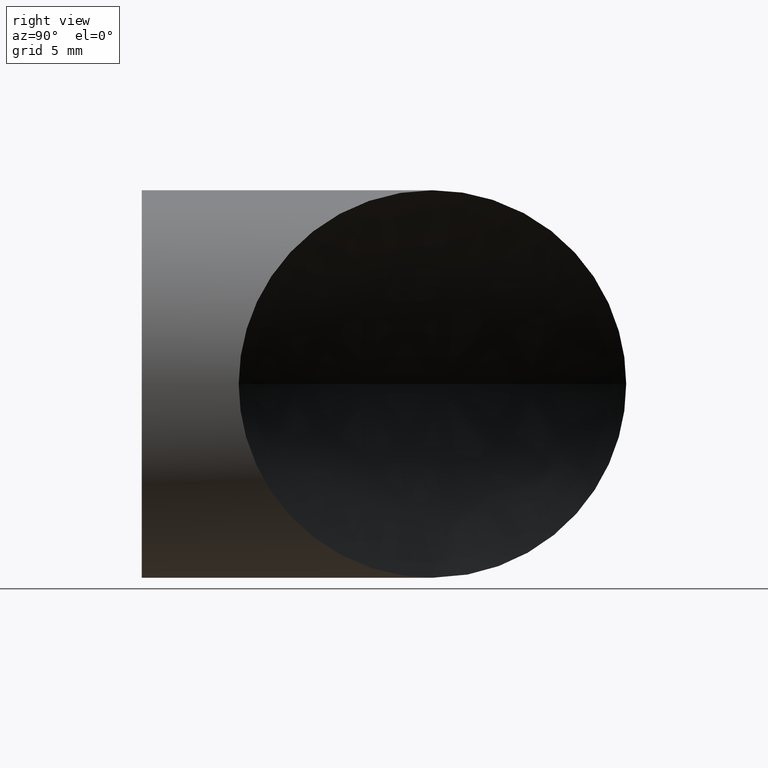
[diagram: clean part render]
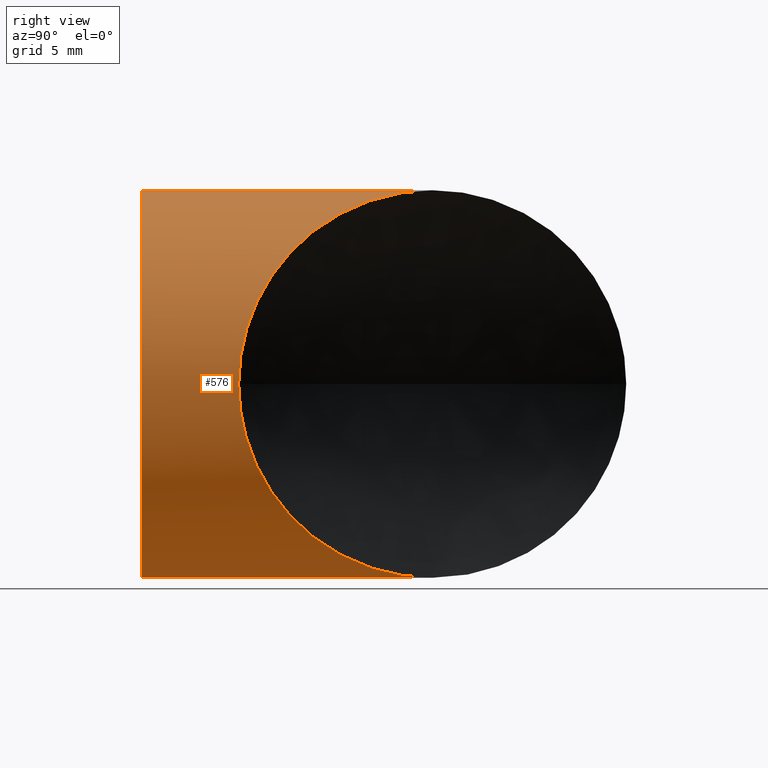
[diagram: same view with one face highlighted and labeled with its STEP entity id]
A machine part, right view. The second image highlights one B-rep face of the part: STEP entity #576.
In plain terms, the highlighted cylindrical surface (partial cylindrical patch) has radius 12.7 mm, axis along (-0, -1, -0).
Its self-contained STEP definition (entity closure, byte-faithful):
#14 = CARTESIAN_POINT ( 'NONE',  ( 11.46083045844308046, 7.589169541525321527, -5.476537139817066802 ) ) ;
#20 = VERTEX_POINT ( 'NONE', #255 ) ;
#22 = CARTESIAN_POINT ( 'NONE',  ( 6.601847638495660142, 12.44815236147140070, -10.85593859369190817 ) ) ;
#30 = ORIENTED_EDGE ( 'NONE', *, *, #791, .F. ) ;
#32 = CARTESIAN_POINT ( 'NONE',  ( 1.429385367669002260, 17.62061463229626312, 12.62441483667357112 ) ) ;
#37 = VERTEX_POINT ( 'NONE', #196 ) ;
#45 = VECTOR ( 'NONE', #581, 1000.000000000000000 ) ;
#52 = AXIS2_PLACEMENT_3D ( 'NONE', #345, #405, #173 ) ;
#63 = CARTESIAN_POINT ( 'NONE',  ( 1.787247943871000055, 17.26275205609421448, 12.57874327586289098 ) ) ;
#73 = CARTESIAN_POINT ( 'NONE',  ( 11.83646679624296816, 7.213533203726102627, -4.609351959705408674 ) ) ;
#75 = CARTESIAN_POINT ( 'NONE',  ( 5.605679513964143545, 13.44432048600252472, -11.42145074648603398 ) ) ;
#80 = CARTESIAN_POINT ( 'NONE',  ( 8.802940517943984133, 10.24705948202286088, -9.188963411443394236 ) ) ;
#97 = CARTESIAN_POINT ( 'NONE',  ( 10.44377629980238353, 8.606223700165564594, 7.239865530170297880 ) ) ;
#114 = CARTESIAN_POINT ( 'NONE',  ( 12.67001750688577744, 6.379982493083709905, 1.009839841562243823 ) ) ;
#125 = CARTESIAN_POINT ( 'NONE',  ( 4.919003763048981348, 14.13099623691744888, 11.73128122438705567 ) ) ;
#130 = CARTESIAN_POINT ( 'NONE',  ( 2.849473519728098037, 16.20052648023753861, 12.39704203074799871 ) ) ;
#134 = CARTESIAN_POINT ( 'NONE',  ( 11.15152537328789606, 7.898474626680381583, -6.094740126766177823 ) ) ;
#142 = CARTESIAN_POINT ( 'NONE',  ( 2.855152482995872543, 16.19484751696936442, -12.39579623565930788 ) ) ;
#160 = CARTESIAN_POINT ( 'NONE',  ( 7.561611379893681928, 11.48838862007336914, 10.21109426996262926 ) ) ;
#163 = CARTESIAN_POINT ( 'NONE',  ( 11.75198745430705749, 7.298012545661985762, 4.838766919932773192 ) ) ;
#166 = CARTESIAN_POINT ( 'NONE',  ( 10.92500611823181345, 8.124993881736317647, 6.490944277365154669 ) ) ;
#173 = DIRECTION ( 'NONE',  ( 0.0000000000000000000, 0.0000000000000000000, -1.000000000000000000 ) ) ;
#184 = LINE ( 'NONE', #280, #45 ) ;
#196 = CARTESIAN_POINT ( 'NONE',  ( -3.132693757179637918E-12, 19.04999999996803695, 12.70000000000026041 ) ) ;
#197 = CARTESIAN_POINT ( 'NONE',  ( 6.931521098869869668, 12.11847890109790526, -10.64879662899022605 ) ) ;
#207 = EDGE_CURVE ( 'NONE', #37, #20, #363, .T. ) ;
#218 = CARTESIAN_POINT ( 'NONE',  ( 1.555301434917138433E-15, 200.0000000000000000, 12.69999999999999929 ) ) ;
#220 = CARTESIAN_POINT ( 'NONE',  ( 12.22725598296658234, 6.822744017001713956, 3.467880644624239395 ) ) ;
#240 = EDGE_LOOP ( 'NONE', ( #30, #495, #480, #628, #241 ) ) ;
#241 = ORIENTED_EDGE ( 'NONE', *, *, #425, .F. ) ;
#248 = CARTESIAN_POINT ( 'NONE',  ( 12.54206478576839601, 6.507935214200748497, -2.012280748583813228 ) ) ;
#249 = CARTESIAN_POINT ( 'NONE',  ( 11.74712600856367928, 7.302873991405227194, -4.832260201967334190 ) ) ;
#255 = CARTESIAN_POINT ( 'NONE',  ( 1.555301434917138433E-15, 0.0000000000000000000, 12.69999999999999929 ) ) ;
#258 = AXIS2_PLACEMENT_3D ( 'NONE', #782, #411, #731 ) ;
#267 = CARTESIAN_POINT ( 'NONE',  ( -3.132693757179637918E-12, 19.04999999996803695, 12.70000000000026041 ) ) ;
#274 = CARTESIAN_POINT ( 'NONE',  ( 8.796537155208987713, 10.25346284472990455, 9.195328755256735320 ) ) ;
#280 = CARTESIAN_POINT ( 'NONE',  ( 0.0000000000000000000, 200.0000000000000000, -12.69999999999999929 ) ) ;
#289 = CARTESIAN_POINT ( 'NONE',  ( 12.70000000000023377, 6.349999999969435649, 0.0000000000000000000 ) ) ;
#307 = CARTESIAN_POINT ( 'NONE',  ( 7.886829916384055394, 11.16317008358242191, -9.962309795164632220 ) ) ;
#308 = EDGE_CURVE ( 'NONE', #20, #370, #730, .T. ) ;
#316 = CARTESIAN_POINT ( 'NONE',  ( 12.40164334135289437, 6.648356658616227044, -2.747705071860363724 ) ) ;
#317 = CARTESIAN_POINT ( 'NONE',  ( 11.55946391817771257, 7.490536081791117518, -5.265406161440742139 ) ) ;
#338 = DIRECTION ( 'NONE',  ( -0.0000000000000000000, -1.000000000000000000, -0.0000000000000000000 ) ) ;
#340 = CARTESIAN_POINT ( 'NONE',  ( 6.915862950740484294, 12.13413704922630565, 10.65904557158737376 ) ) ;
#345 = CARTESIAN_POINT ( 'NONE',  ( 0.0000000000000000000, 200.0000000000000000, 0.0000000000000000000 ) ) ;
#363 = LINE ( 'NONE', #218, #649 ) ;
#370 = VERTEX_POINT ( 'NONE', #665 ) ;
#371 = B_SPLINE_CURVE_WITH_KNOTS ( 'NONE', 3,
 ( #442, #700, #498, #696, #248, #753, #316, #493, #431, #73, #249, #317, #14, #134, #756, #558, #631, #373, #80, #307, #561, #197, #22, #75, #502, #499, #142, #507, #752, #564 ),
 .UNSPECIFIED., .F., .F.,
 ( 4, 2, 2, 2, 2, 2, 2, 2, 2, 2, 2, 2, 2, 2, 4 ),
 ( 0.07208609573369624546, 0.07358591069448940092, 0.07433581817488596477, 0.07508572565528254250, 0.07658554061607569796, 0.07733544809647227569, 0.07808535557686885342, 0.07958517053766199500, 0.08108498549845515047, 0.08408461542004144751, 0.08558443038083460297, 0.08708424534162775843, 0.09008387526321405547, 0.09308350518480036639, 0.09608313510638666344 ),
 .UNSPECIFIED. ) ;
#373 = CARTESIAN_POINT ( 'NONE',  ( 9.381974331476964579, 9.668025668491086577, -8.603140347862060722 ) ) ;
#386 = CARTESIAN_POINT ( 'NONE',  ( 0.7136360518662263619, 18.33636394809876435, 12.68501935683216963 ) ) ;
#395 = CARTESIAN_POINT ( 'NONE',  ( 7.876614981177863406, 11.17338501876066204, 9.970442349681841065 ) ) ;
#401 = CARTESIAN_POINT ( 'NONE',  ( 10.18558286620709019, 8.864417133761675061, 7.598030722870877440 ) ) ;
#405 = DIRECTION ( 'NONE',  ( -0.0000000000000000000, -1.000000000000000000, -0.0000000000000000000 ) ) ;
#411 = DIRECTION ( 'NONE',  ( 0.0000000000000000000, 1.000000000000000000, 0.0000000000000000000 ) ) ;
#420 = FACE_OUTER_BOUND ( 'NONE', #240, .T. ) ;
#425 = EDGE_CURVE ( 'NONE', #767, #630, #371, .T. ) ;
#431 = CARTESIAN_POINT ( 'NONE',  ( 12.08597738952259526, 6.964022610446568784, -3.930831638203395428 ) ) ;
#442 = CARTESIAN_POINT ( 'NONE',  ( 12.70000000000023377, 6.349999999969435649, 0.0000000000000000000 ) ) ;
#451 = B_SPLINE_CURVE_WITH_KNOTS ( 'NONE', 3,
 ( #267, #717, #386, #32, #63, #130, #483, #125, #546, #719, #340, #160, #395, #274, #460, #401, #97, #166, #521, #590, #163, #586, #220, #656, #477, #114, #539, #289 ),
 .UNSPECIFIED., .F., .F.,
 ( 4, 2, 2, 2, 2, 2, 2, 2, 2, 2, 2, 2, 2, 4 ),
 ( 0.04806234198104189503, 0.04956382659058279627, 0.05106531120012370445, 0.05406828041920549999, 0.05707124963828729552, 0.05857273424782819676, 0.06007421885736909106, 0.06307718807645087966, 0.06457867268599176702, 0.06608015729553266826, 0.06758164190507356950, 0.06908312651461445686, 0.07058461112415535810, 0.07208609573369624546 ),
 .UNSPECIFIED. ) ;
#460 = CARTESIAN_POINT ( 'NONE',  ( 9.376833469306342650, 9.673166530662104634, 8.608697395603924107 ) ) ;
#477 = CARTESIAN_POINT ( 'NONE',  ( 12.54855033674582465, 6.501449663223616504, 2.020644594320044618 ) ) ;
#480 = ORIENTED_EDGE ( 'NONE', *, *, #308, .T. ) ;
#483 = CARTESIAN_POINT ( 'NONE',  ( 3.546809371701622471, 15.50319062826426730, 12.21637018378846662 ) ) ;
#493 = CARTESIAN_POINT ( 'NONE',  ( 12.22788635843573424, 6.822113641533317896, -3.465740630426696445 ) ) ;
#495 = ORIENTED_EDGE ( 'NONE', *, *, #207, .T. ) ;
#498 = CARTESIAN_POINT ( 'NONE',  ( 12.67011755549540730, 6.379882444473539138, -1.007176147025225177 ) ) ;
#499 = CARTESIAN_POINT ( 'NONE',  ( 3.553757434003594895, 15.49624256596235838, -12.21445827631310088 ) ) ;
#502 = CARTESIAN_POINT ( 'NONE',  ( 4.929004921351947566, 14.12099507861455727, -11.72719460778312595 ) ) ;
#507 = CARTESIAN_POINT ( 'NONE',  ( 1.436873122830487182, 17.61312687713418512, -12.63894994238170355 ) ) ;
#521 = CARTESIAN_POINT ( 'NONE',  ( 11.14949063026067044, 7.900509369707457097, 6.098495463351418344 ) ) ;
#523 = CYLINDRICAL_SURFACE ( 'NONE', #52, 12.69999999999999929 ) ;
#539 = CARTESIAN_POINT ( 'NONE',  ( 12.70000000000023910, 6.349999999969438313, 0.5044576789329778821 ) ) ;
#546 = CARTESIAN_POINT ( 'NONE',  ( 5.593893530319160590, 13.45610646964802903, 11.42703603216384423 ) ) ;
#558 = CARTESIAN_POINT ( 'NONE',  ( 10.44753238245630733, 8.602467617512145281, -7.234391973878477877 ) ) ;
#561 = CARTESIAN_POINT ( 'NONE',  ( 7.573415272199055970, 11.47658472776896943, -10.20226619455177186 ) ) ;
#564 = CARTESIAN_POINT ( 'NONE',  ( -2.012279232133096230E-13, 19.04999999996460858, -12.70000000000005080 ) ) ;
#573 = EDGE_CURVE ( 'NONE', #630, #370, #184, .T. ) ;
#576 = ADVANCED_FACE ( 'NONE', ( #420 ), #523, .T. ) ;
#580 = CARTESIAN_POINT ( 'NONE',  ( 12.70000000000023377, 6.349999999969435649, 0.0000000000000000000 ) ) ;
#581 = DIRECTION ( 'NONE',  ( -0.0000000000000000000, -1.000000000000000000, -0.0000000000000000000 ) ) ;
#586 = CARTESIAN_POINT ( 'NONE',  ( 12.08529452624409650, 6.964705473725070206, 3.933005294372300842 ) ) ;
#590 = CARTESIAN_POINT ( 'NONE',  ( 11.56254631237557540, 7.487453687592712903, 5.273548236714847626 ) ) ;
#628 = ORIENTED_EDGE ( 'NONE', *, *, #573, .F. ) ;
#630 = VERTEX_POINT ( 'NONE', #653 ) ;
#631 = CARTESIAN_POINT ( 'NONE',  ( 10.19051452320394091, 8.859485476764421108, -7.591428080588281446 ) ) ;
#649 = VECTOR ( 'NONE', #338, 1000.000000000000000 ) ;
#653 = CARTESIAN_POINT ( 'NONE',  ( -2.012279232133096230E-13, 19.04999999996460858, -12.70000000000005080 ) ) ;
#656 = CARTESIAN_POINT ( 'NONE',  ( 12.45886779579681480, 6.591132204171577413, 2.511692314995735753 ) ) ;
#665 = CARTESIAN_POINT ( 'NONE',  ( 0.0000000000000000000, 0.0000000000000000000, -12.69999999999999929 ) ) ;
#696 = CARTESIAN_POINT ( 'NONE',  ( 12.57984097757541520, 6.470159022393493053, -1.761156337241038150 ) ) ;
#700 = CARTESIAN_POINT ( 'NONE',  ( 12.70000000000023199, 6.349999999969437425, -0.5038967227123343218 ) ) ;
#717 = CARTESIAN_POINT ( 'NONE',  ( 0.3564710798094332111, 18.69352892015474765, 12.70000000000110241 ) ) ;
#719 = CARTESIAN_POINT ( 'NONE',  ( 6.587015225188835643, 12.46298477477874123, 10.86489437364019572 ) ) ;
#730 = CIRCLE ( 'NONE', #258, 12.69999999999999929 ) ;
#731 = DIRECTION ( 'NONE',  ( 0.0000000000000000000, 0.0000000000000000000, 1.000000000000000000 ) ) ;
#752 = CARTESIAN_POINT ( 'NONE',  ( 0.7170981315368304410, 18.33290186842785729, -12.70000000000006324 ) ) ;
#753 = CARTESIAN_POINT ( 'NONE',  ( 12.45302709389154572, 6.596972906077568588, -2.504950917749855233 ) ) ;
#756 = CARTESIAN_POINT ( 'NONE',  ( 10.92750238881404634, 8.122497611154587460, -6.486682638811136492 ) ) ;
#767 = VERTEX_POINT ( 'NONE', #580 ) ;
#782 = CARTESIAN_POINT ( 'NONE',  ( 0.0000000000000000000, 0.0000000000000000000, 0.0000000000000000000 ) ) ;
#791 = EDGE_CURVE ( 'NONE', #37, #767, #451, .T. ) ;